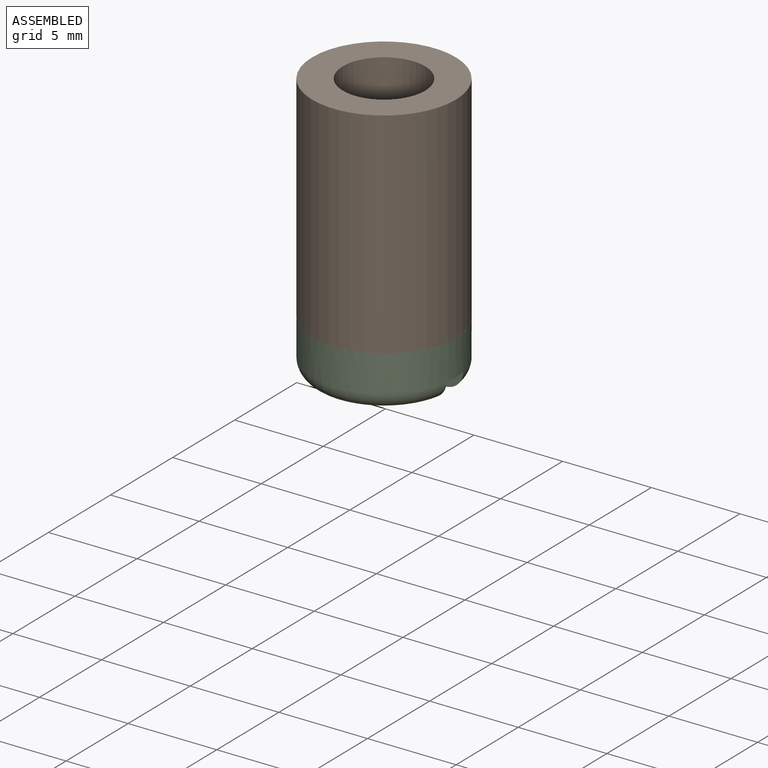
[diagram: assembled view]
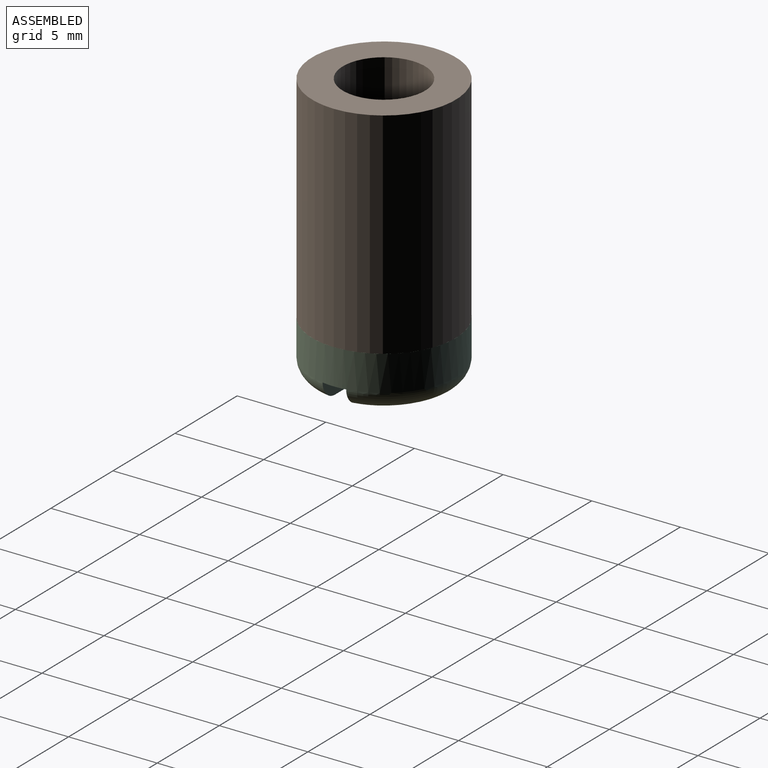
[diagram: assembled view, second angle]
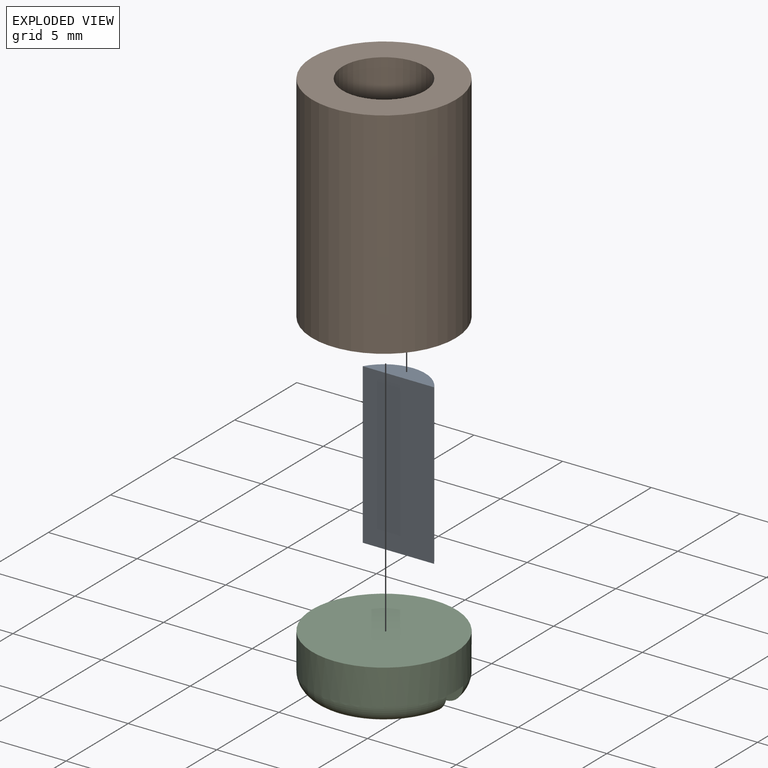
[diagram: exploded view]
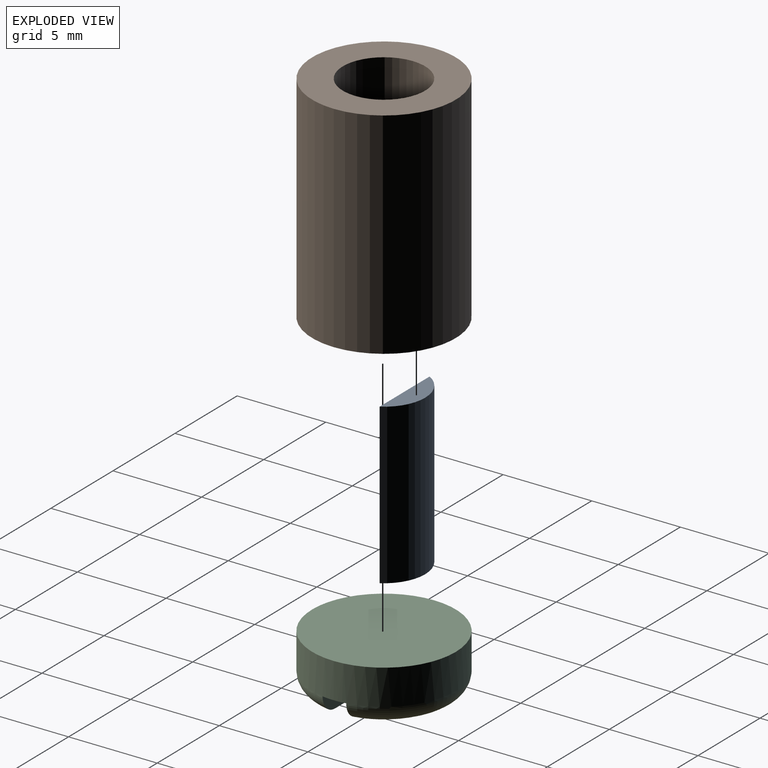
[diagram: exploded view, second angle]
ASSEMBLY  parts=3 mates=2
PART A: 4 faces, bbox 4x1.2x9 mm
  f0: plane 9x4.03mm, normal (0,-1,0), area 36.2mm2, adj f1,f2,f3
  f1: cylinder r=2.32mm len=9mm, axis (0,0,-1), area 43.8mm2, adj f0,f2,f3
  f2: plane 4.03x1.16mm, normal (0,0,1), area 3.3mm2, adj f0,f1
  f3: plane 4.03x1.16mm, normal (0,0,-1), area 3.3mm2, adj f0,f1
PART B: 4 faces, bbox 8.1x8.1x12.2 mm
  f0: cylinder r=2.32mm len=12.15mm, axis (0,0,-1), area 177.5mm2, adj f2,f3
  f1: cylinder r=4.05mm len=12.15mm, axis (0,0,-1), area 309.2mm2, adj f2,f3
  f2: plane 8.1x8.1mm, normal (0,0,1), area 34.5mm2, adj f0,f1
  f3: plane 8.1x8.1mm, normal (0,0,-1), area 34.5mm2, adj f0,f1
PART C: 8 faces, bbox 8.7x8.8x3 mm
  f0: torus R=3.05mm, axis (0,0,1), area 34.3mm2, adj f1,f2,f4,f6
  f1: cylinder r=4.05mm len=8.1mm, axis (0,0,1), area 50.9mm2, adj f0,f3,f7
  f2: plane 6.1x6.03mm, normal (0,0,-1), area 25.2mm2, adj f0,f4,f5,f6
  f3: plane 8.1x8.1mm, normal (0,0,1), area 51.5mm2, adj f1
  f4: plane 4x1mm, normal (0,1,0), area 3.8mm2, adj f0,f2,f5,f7
  f5: plane 1.33x1mm, normal (1,0,0), area 1.3mm2, adj f2,f4,f6,f7
  f6: plane 4x1mm, normal (0,-1,0), area 3.8mm2, adj f0,f2,f5,f7
  f7: plane 4.05x1.33mm, normal (0,0,-1), area 5.4mm2, adj f1,f4,f5,f6
PLACE A t=(-16.83,0.33,-5.27)mm
PLACE B t=(-20.11,9.7,-5.27)mm
PLACE C t=(-21.26,-10.31,-5.27)mm
MATE fastened A.f1 <-> B.f0  axis (0,0,-1) through (-2.1,-0.67,-5.27)mm
MATE fastened C.f0 <-> B.f0  axis (0,0,1) through (-2.1,-0.67,-5.27)mm
